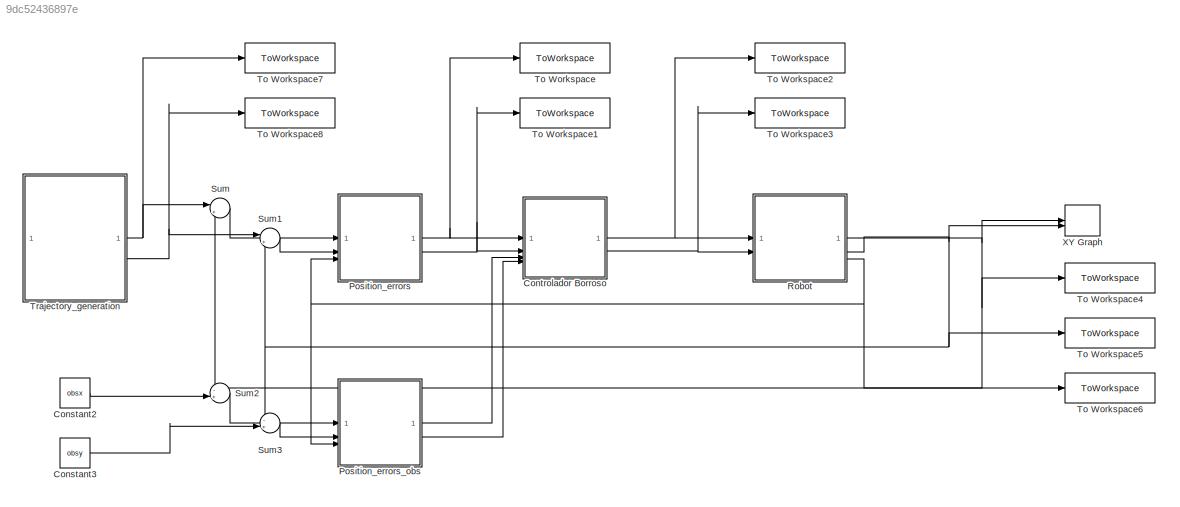
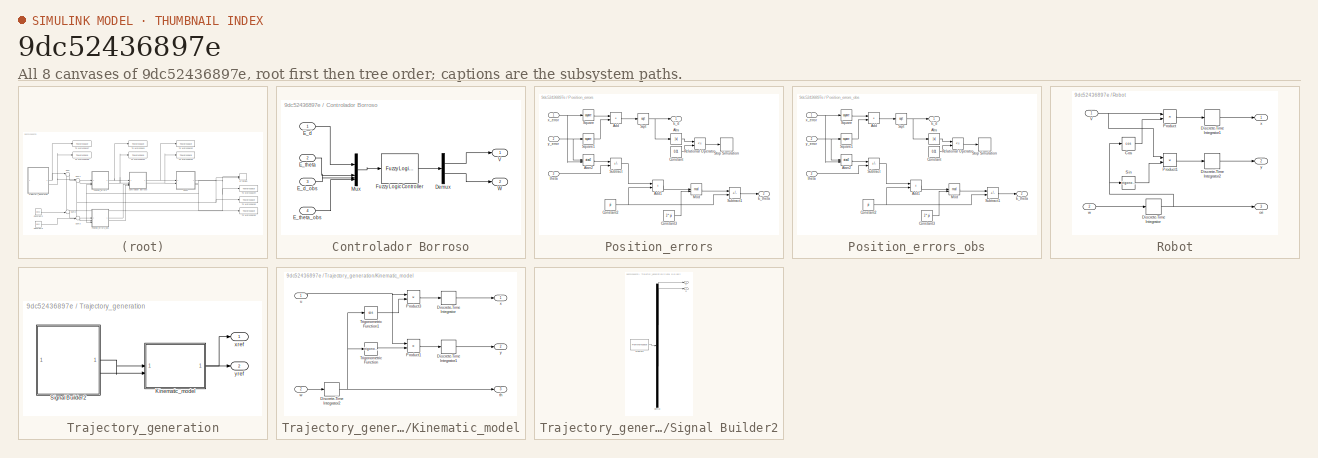
[diagram: thumbnail index - all 8 canvases of the model, root first then tree order]
MODEL slx_9dc52436897e
KIND model
CONFIG AbsTol = auto
CONFIG EnableMultiTasking = off
CONFIG FixedStep = Ts
CONFIG MaxStep = auto
CONFIG MinStep = auto
CONFIG RelTol = 1e-3
CONFIG SampleTimeConstraint = Unconstrained
CONFIG SolverName = FixedStepAuto
CONFIG StartTime = 0.0
CONFIG StopTime = 100.0
BLOCK [Constant] Constant2
  Value = obsx
BLOCK [Constant] Constant3
  Value = obsy
BLOCK [SubSystem] Controlador Borroso
BLOCK [Demux] Controlador Borroso/Demux
  Outputs = 2
BLOCK [Inport] Controlador Borroso/E_d
BLOCK [Inport] Controlador Borroso/E_d_obs
  Port = 3
BLOCK [Inport] Controlador Borroso/E_theta
  Port = 2
BLOCK [Inport] Controlador Borroso/E_theta_obs
  Port = 4
BLOCK [Reference] Controlador Borroso/Fuzzy Logic Controller  REF=fuzblock/Fuzzy Logic   (lib defined in mdl_858b3b3e7478)
Controller
  SourceBlock = fuzblock/Fuzzy Logic \nController
  SourceType = Fuzzy Inference System
BLOCK [Mux] Controlador Borroso/Mux
  DisplayOption = bar
BLOCK [Outport] Controlador Borroso/V
BLOCK [Outport] Controlador Borroso/W
  Port = 2
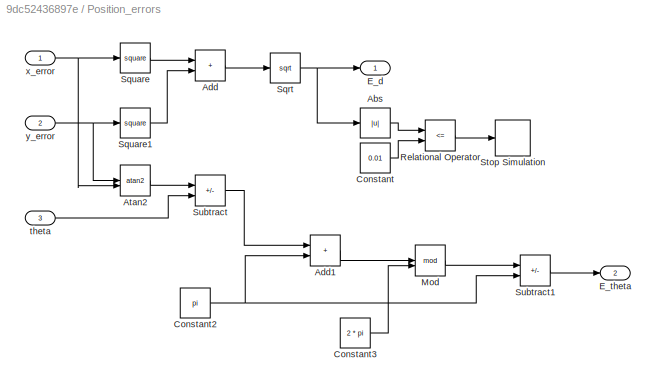
BLOCK [SubSystem] Position_errors
BLOCK [Abs] Position_errors/Abs
  SaturateOnIntegerOverflow = off
BLOCK [Sum] Position_errors/Add
  IconShape = rectangular
BLOCK [Sum] Position_errors/Add1
  IconShape = rectangular
BLOCK [Trigonometry] Position_errors/Atan2
  Operator = atan2
BLOCK [Constant] Position_errors/Constant
  Value = 0.01
BLOCK [Constant] Position_errors/Constant2
  Value = pi
BLOCK [Constant] Position_errors/Constant3
  Value = 2 * pi
BLOCK [Outport] Position_errors/E_d
BLOCK [Outport] Position_errors/E_theta
  Port = 2
BLOCK [Math] Position_errors/Mod
  Operator = mod
BLOCK [RelationalOperator] Position_errors/Relational Operator
  InputSameDT = off
  Operator = <=
  OutDataTypeStr = boolean
  RndMeth = Simplest
BLOCK [Sqrt] Position_errors/Sqrt
BLOCK [Math] Position_errors/Square
  Operator = square
BLOCK [Math] Position_errors/Square1
  Operator = square
BLOCK [Stop] Position_errors/Stop Simulation
BLOCK [Sum] Position_errors/Subtract
  IconShape = rectangular
  Inputs = +-
BLOCK [Sum] Position_errors/Subtract1
  IconShape = rectangular
  Inputs = +-
BLOCK [Inport] Position_errors/theta
  Port = 3
BLOCK [Inport] Position_errors/x_error
BLOCK [Inport] Position_errors/y_error
  Port = 2
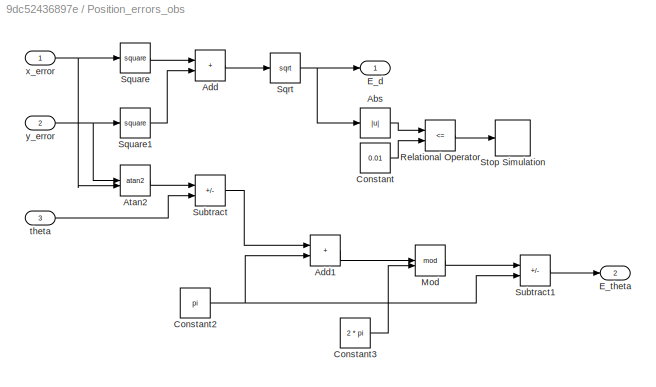
BLOCK [SubSystem] Position_errors_obs
BLOCK [Abs] Position_errors_obs/Abs
  SaturateOnIntegerOverflow = off
BLOCK [Sum] Position_errors_obs/Add
  IconShape = rectangular
BLOCK [Sum] Position_errors_obs/Add1
  IconShape = rectangular
BLOCK [Trigonometry] Position_errors_obs/Atan2
  Operator = atan2
BLOCK [Constant] Position_errors_obs/Constant
  Value = 0.01
BLOCK [Constant] Position_errors_obs/Constant2
  Value = pi
BLOCK [Constant] Position_errors_obs/Constant3
  Value = 2 * pi
BLOCK [Outport] Position_errors_obs/E_d
BLOCK [Outport] Position_errors_obs/E_theta
  Port = 2
BLOCK [Math] Position_errors_obs/Mod
  Operator = mod
BLOCK [RelationalOperator] Position_errors_obs/Relational Operator
  InputSameDT = off
  Operator = <=
  OutDataTypeStr = boolean
  RndMeth = Simplest
BLOCK [Sqrt] Position_errors_obs/Sqrt
BLOCK [Math] Position_errors_obs/Square
  Operator = square
BLOCK [Math] Position_errors_obs/Square1
  Operator = square
BLOCK [Stop] Position_errors_obs/Stop Simulation
BLOCK [Sum] Position_errors_obs/Subtract
  IconShape = rectangular
  Inputs = +-
BLOCK [Sum] Position_errors_obs/Subtract1
  IconShape = rectangular
  Inputs = +-
BLOCK [Inport] Position_errors_obs/theta
  Port = 3
BLOCK [Inport] Position_errors_obs/x_error
BLOCK [Inport] Position_errors_obs/y_error
  Port = 2
BLOCK [SubSystem] Robot
BLOCK [Trigonometry] Robot/Cos
  Operator = cos
BLOCK [DiscreteIntegrator] Robot/Discrete-Time Integrator
  ICPrevOutput = DiscIntNeverNeededParam
  ICPrevScaledInput = DiscIntNeverNeededParam
  InitialConditionSetting = Auto
  SampleTime = -1
BLOCK [DiscreteIntegrator] Robot/Discrete-Time Integrator1
  ICPrevOutput = DiscIntNeverNeededParam
  ICPrevScaledInput = DiscIntNeverNeededParam
  InitialConditionSetting = Auto
  SampleTime = -1
BLOCK [DiscreteIntegrator] Robot/Discrete-Time Integrator2
  ICPrevOutput = DiscIntNeverNeededParam
  ICPrevScaledInput = DiscIntNeverNeededParam
  InitialConditionSetting = Auto
  SampleTime = -1
BLOCK [Product] Robot/Product
BLOCK [Product] Robot/Product1
BLOCK [Trigonometry] Robot/Sin
BLOCK [Inport] Robot/V
BLOCK [Outport] Robot/ori
  Port = 3
BLOCK [Inport] Robot/w
  Port = 2
BLOCK [Outport] Robot/x
BLOCK [Outport] Robot/y
  Port = 2
BLOCK [Sum] Sum
  Inputs = |+-
BLOCK [Sum] Sum1
  Inputs = |+-
BLOCK [Sum] Sum2
  Inputs = -+|
BLOCK [Sum] Sum3
  Inputs = -+|
BLOCK [ToWorkspace] To Workspace
  FixptAsFi = on
  MaxDataPoints = inf
  SampleTime = -1
  SaveFormat = Timeseries
  VariableName = E_d
BLOCK [ToWorkspace] To Workspace1
  FixptAsFi = on
  MaxDataPoints = inf
  SampleTime = -1
  SaveFormat = Timeseries
  VariableName = E_theta
BLOCK [ToWorkspace] To Workspace2
  FixptAsFi = on
  MaxDataPoints = inf
  SampleTime = -1
  SaveFormat = Timeseries
  VariableName = V
BLOCK [ToWorkspace] To Workspace3
  FixptAsFi = on
  MaxDataPoints = inf
  SampleTime = -1
  SaveFormat = Timeseries
  VariableName = W
BLOCK [ToWorkspace] To Workspace4
  FixptAsFi = on
  MaxDataPoints = inf
  SampleTime = -1
  SaveFormat = Timeseries
  VariableName = salida_x
BLOCK [ToWorkspace] To Workspace5
  FixptAsFi = on
  MaxDataPoints = inf
  SampleTime = -1
  SaveFormat = Timeseries
  VariableName = salida_y
BLOCK [ToWorkspace] To Workspace6
  FixptAsFi = on
  MaxDataPoints = inf
  SampleTime = -1
  SaveFormat = Timeseries
  VariableName = salida_theta
BLOCK [ToWorkspace] To Workspace7
  FixptAsFi = on
  MaxDataPoints = inf
  SampleTime = -1
  SaveFormat = Timeseries
  VariableName = ruta_x
BLOCK [ToWorkspace] To Workspace8
  FixptAsFi = on
  MaxDataPoints = inf
  SampleTime = -1
  SaveFormat = Timeseries
  VariableName = ruta_y
BLOCK [SubSystem] Trajectory_generation
BLOCK [SubSystem] Trajectory_generation/Kinematic_model
BLOCK [DiscreteIntegrator] Trajectory_generation/Kinematic_model/Discrete-Time Integrator
  ICPrevOutput = DiscIntNeverNeededParam
  ICPrevScaledInput = DiscIntNeverNeededParam
  InitialCondition = x_0
  SampleTime = Ts
BLOCK [DiscreteIntegrator] Trajectory_generation/Kinematic_model/Discrete-Time Integrator1
  ICPrevOutput = DiscIntNeverNeededParam
  ICPrevScaledInput = DiscIntNeverNeededParam
  InitialCondition = y_0
  SampleTime = Ts
BLOCK [DiscreteIntegrator] Trajectory_generation/Kinematic_model/Discrete-Time Integrator2
  ICPrevOutput = DiscIntNeverNeededParam
  ICPrevScaledInput = DiscIntNeverNeededParam
  InitialCondition = th_0
  SampleTime = Ts
BLOCK [Product] Trajectory_generation/Kinematic_model/Product1
BLOCK [Product] Trajectory_generation/Kinematic_model/Product3
BLOCK [Trigonometry] Trajectory_generation/Kinematic_model/Trigonometric Function
BLOCK [Trigonometry] Trajectory_generation/Kinematic_model/Trigonometric Function1
  Operator = cos
BLOCK [Outport] Trajectory_generation/Kinematic_model/th
  Port = 3
  VectorParamsAs1DForOutWhenUnconnected = off
BLOCK [Inport] Trajectory_generation/Kinematic_model/u
BLOCK [Inport] Trajectory_generation/Kinematic_model/w
  Port = 2
BLOCK [Outport] Trajectory_generation/Kinematic_model/x
  VectorParamsAs1DForOutWhenUnconnected = off
BLOCK [Outport] Trajectory_generation/Kinematic_model/y
  Port = 2
  VectorParamsAs1DForOutWhenUnconnected = off
BLOCK [SubSystem] Trajectory_generation/Signal Builder2
  ClipboardFcn = sigbuilder_block('clipboard');
  CloseFcn = sigbuilder_block('close');
  ContinueFcn = sigbuilder_block('continue')
  CopyFcn = sigbuilder_block('copy');
  DeleteFcn = sigbuilder_block('delete');
  LoadFcn = sigbuilder_block('load');
  MaskHideContents = on
  ModelCloseFcn = sigbuilder_block('modelClose');
  NameChangeFcn = sigbuilder_block('namechange');
  OpenFcn = sigbuilder_block('open',[60 82.4 534.4 508 ]);
  PauseFcn = sigbuilder_block('pause')
  PreSaveFcn = sigbuilder_block('preSave');
  StartFcn = sigbuilder_block('start');
  StopFcn = sigbuilder_block('stop');
  Tag = STV Subsys
BLOCK [Demux] Trajectory_generation/Signal Builder2/Demux
  DisplayOption = none
  Outputs = 2
  Tag = STV Demux
BLOCK [FromWorkspace] Trajectory_generation/Signal Builder2/FromWs
  Tag = STV FromWs
  VariableName = tuvar
BLOCK [Outport] Trajectory_generation/Signal Builder2/O
  Port = 2
  Tag = STV Outport
  VectorParamsAs1DForOutWhenUnconnected = off
BLOCK [Outport] Trajectory_generation/Signal Builder2/V
  Tag = STV Outport
  VectorParamsAs1DForOutWhenUnconnected = off
BLOCK [Outport] Trajectory_generation/xref
  VectorParamsAs1DForOutWhenUnconnected = off
BLOCK [Outport] Trajectory_generation/yref
  Port = 2
  VectorParamsAs1DForOutWhenUnconnected = off
BLOCK [Record] XY Graph
  CompatibilityTag = XY
  FileSettingsInternal = {"entries":[{"content":{"excelSettings":{"content":{},"type":"Streamout.ExcelSettings"}},"type":"Streamout.FileSettingStorage","uuid":""}],"packageUris":["http:\/\/schema.mathworks.com\/mf0\/streamout_blocks\/R2020a"],"version":"1.0"}
  Layout = [1 1]
  SignalsInternal = {"entries":[{"content":{"signals":[{"content":{"blockPath":[],"dimensions":[1],"domain":"","lineColor":"#a2142f","plots":[1],"port":1,"sid":[""],"signalID":15895,"signalName":"Robot:1"},"type":"RecordBlkView.Signal","uuid":""},{"content":{"blockPath":[],"dimensions":[1],"domain":"","lineColor":"#139fff","plots":[1],"port":2,"sid":[""],"signalID":15899,"signalName":"Robot:2"},"type":"RecordBlkView....<+164ch>
  VisualizationBindings = {"xyplotplugin":{"info":[{"series":[{"bindingParametersList":[{"parameter":"X-Axis","signalID":15895,"signalName":"Robot:1"},{"parameter":"Y-Axis","signalID":15899,"signalName":"Robot:2"}],"seriesID":60643}],"subplotID":1}]}}
LINE Constant2:1 -> Sum2:2
LINE Constant3:1 -> Sum3:2
LINE Controlador Borroso/Demux:1 -> Controlador Borroso/V:1
LINE Controlador Borroso/Demux:2 -> Controlador Borroso/W:1
LINE Controlador Borroso/E_d:1 -> Controlador Borroso/Mux:1
LINE Controlador Borroso/E_d_obs:1 -> Controlador Borroso/Mux:3
LINE Controlador Borroso/E_theta:1 -> Controlador Borroso/Mux:2
LINE Controlador Borroso/E_theta_obs:1 -> Controlador Borroso/Mux:4
LINE Controlador Borroso/Fuzzy Logic Controller:1 -> Controlador Borroso/Demux:1
LINE Controlador Borroso/Mux:1 -> Controlador Borroso/Fuzzy Logic Controller:1
NET Controlador Borroso:1 -> Robot:1, To Workspace2:1
NET Controlador Borroso:2 -> Robot:2, To Workspace3:1
LINE Position_errors/Abs:1 -> Position_errors/Relational Operator:1
LINE Position_errors/Add1:1 -> Position_errors/Mod:1
LINE Position_errors/Add:1 -> Position_errors/Sqrt:1
LINE Position_errors/Atan2:1 -> Position_errors/Subtract:1
NET Position_errors/Constant2:1 -> Position_errors/Add1:2, Position_errors/Subtract1:2
LINE Position_errors/Constant3:1 -> Position_errors/Mod:2
LINE Position_errors/Constant:1 -> Position_errors/Relational Operator:2
LINE Position_errors/Mod:1 -> Position_errors/Subtract1:1
LINE Position_errors/Relational Operator:1 -> Position_errors/Stop Simulation:1
NET Position_errors/Sqrt:1 -> Position_errors/Abs:1, Position_errors/E_d:1
LINE Position_errors/Square1:1 -> Position_errors/Add:2
LINE Position_errors/Square:1 -> Position_errors/Add:1
LINE Position_errors/Subtract1:1 -> Position_errors/E_theta:1
LINE Position_errors/Subtract:1 -> Position_errors/Add1:1
LINE Position_errors/theta:1 -> Position_errors/Subtract:2
NET Position_errors/x_error:1 -> Position_errors/Atan2:2, Position_errors/Square:1
NET Position_errors/y_error:1 -> Position_errors/Atan2:1, Position_errors/Square1:1
NET Position_errors:1 -> Controlador Borroso:1, To Workspace:1
NET Position_errors:2 -> Controlador Borroso:2, To Workspace1:1
LINE Position_errors_obs/Abs:1 -> Position_errors_obs/Relational Operator:1
LINE Position_errors_obs/Add1:1 -> Position_errors_obs/Mod:1
LINE Position_errors_obs/Add:1 -> Position_errors_obs/Sqrt:1
LINE Position_errors_obs/Atan2:1 -> Position_errors_obs/Subtract:1
NET Position_errors_obs/Constant2:1 -> Position_errors_obs/Add1:2, Position_errors_obs/Subtract1:2
LINE Position_errors_obs/Constant3:1 -> Position_errors_obs/Mod:2
LINE Position_errors_obs/Constant:1 -> Position_errors_obs/Relational Operator:2
LINE Position_errors_obs/Mod:1 -> Position_errors_obs/Subtract1:1
LINE Position_errors_obs/Relational Operator:1 -> Position_errors_obs/Stop Simulation:1
NET Position_errors_obs/Sqrt:1 -> Position_errors_obs/Abs:1, Position_errors_obs/E_d:1
LINE Position_errors_obs/Square1:1 -> Position_errors_obs/Add:2
LINE Position_errors_obs/Square:1 -> Position_errors_obs/Add:1
LINE Position_errors_obs/Subtract1:1 -> Position_errors_obs/E_theta:1
LINE Position_errors_obs/Subtract:1 -> Position_errors_obs/Add1:1
LINE Position_errors_obs/theta:1 -> Position_errors_obs/Subtract:2
NET Position_errors_obs/x_error:1 -> Position_errors_obs/Atan2:2, Position_errors_obs/Square:1
NET Position_errors_obs/y_error:1 -> Position_errors_obs/Atan2:1, Position_errors_obs/Square1:1
LINE Position_errors_obs:1 -> Controlador Borroso:3
LINE Position_errors_obs:2 -> Controlador Borroso:4
LINE Robot/Cos:1 -> Robot/Product:2
LINE Robot/Discrete-Time Integrator1:1 -> Robot/x:1
LINE Robot/Discrete-Time Integrator2:1 -> Robot/y:1
NET Robot/Discrete-Time Integrator:1 -> Robot/Cos:1, Robot/Sin:1, Robot/ori:1
LINE Robot/Product1:1 -> Robot/Discrete-Time Integrator2:1
LINE Robot/Product:1 -> Robot/Discrete-Time Integrator1:1
LINE Robot/Sin:1 -> Robot/Product1:2
NET Robot/V:1 -> Robot/Product1:1, Robot/Product:1
LINE Robot/w:1 -> Robot/Discrete-Time Integrator:1
NET Robot:1 -> Sum2:1, Sum:2, To Workspace4:1, XY Graph:1
NET Robot:2 -> Sum1:2, Sum3:1, To Workspace5:1, XY Graph:2
NET Robot:3 -> Position_errors:3, Position_errors_obs:3, To Workspace6:1
LINE Sum1:1 -> Position_errors:2
LINE Sum2:1 -> Position_errors_obs:1
LINE Sum3:1 -> Position_errors_obs:2
LINE Sum:1 -> Position_errors:1
LINE Trajectory_generation/Kinematic_model/Discrete-Time Integrator1:1 -> Trajectory_generation/Kinematic_model/y:1
NET Trajectory_generation/Kinematic_model/Discrete-Time Integrator2:1 -> Trajectory_generation/Kinematic_model/Trigonometric Function1:1, Trajectory_generation/Kinematic_model/Trigonometric Function:1, Trajectory_generation/Kinematic_model/th:1
LINE Trajectory_generation/Kinematic_model/Discrete-Time Integrator:1 -> Trajectory_generation/Kinematic_model/x:1
LINE Trajectory_generation/Kinematic_model/Product1:1 -> Trajectory_generation/Kinematic_model/Discrete-Time Integrator1:1
LINE Trajectory_generation/Kinematic_model/Product3:1 -> Trajectory_generation/Kinematic_model/Discrete-Time Integrator:1
LINE Trajectory_generation/Kinematic_model/Trigonometric Function1:1 -> Trajectory_generation/Kinematic_model/Product3:2
LINE Trajectory_generation/Kinematic_model/Trigonometric Function:1 -> Trajectory_generation/Kinematic_model/Product1:2
NET Trajectory_generation/Kinematic_model/u:1 -> Trajectory_generation/Kinematic_model/Product1:1, Trajectory_generation/Kinematic_model/Product3:1
LINE Trajectory_generation/Kinematic_model/w:1 -> Trajectory_generation/Kinematic_model/Discrete-Time Integrator2:1
LINE Trajectory_generation/Kinematic_model:1 -> Trajectory_generation/xref:1
LINE Trajectory_generation/Kinematic_model:2 -> Trajectory_generation/yref:1
LINE Trajectory_generation/Signal Builder2/Demux:1 -> Trajectory_generation/Signal Builder2/V:1
LINE Trajectory_generation/Signal Builder2/Demux:2 -> Trajectory_generation/Signal Builder2/O:1
LINE Trajectory_generation/Signal Builder2/FromWs:1 -> Trajectory_generation/Signal Builder2/Demux:1
LINE Trajectory_generation/Signal Builder2:1 -> Trajectory_generation/Kinematic_model:1
LINE Trajectory_generation/Signal Builder2:2 -> Trajectory_generation/Kinematic_model:2
NET Trajectory_generation:1 -> Sum:1, To Workspace7:1
NET Trajectory_generation:2 -> Sum1:1, To Workspace8:1
note: NET lines group one-source signal fan-out (src -> all destinations, sorted); 1:1 wires keep LINE
